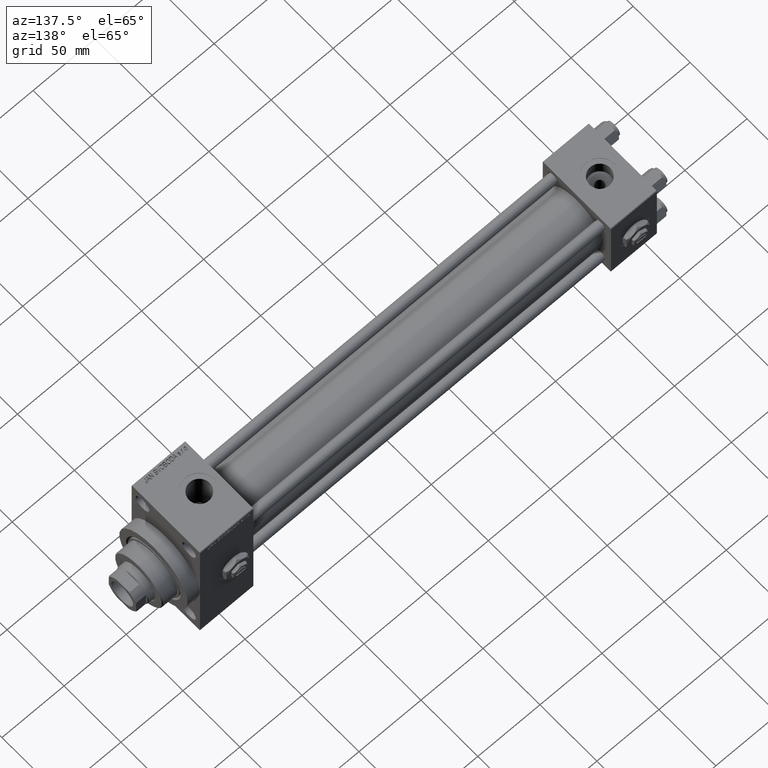
[diagram: clean part render]
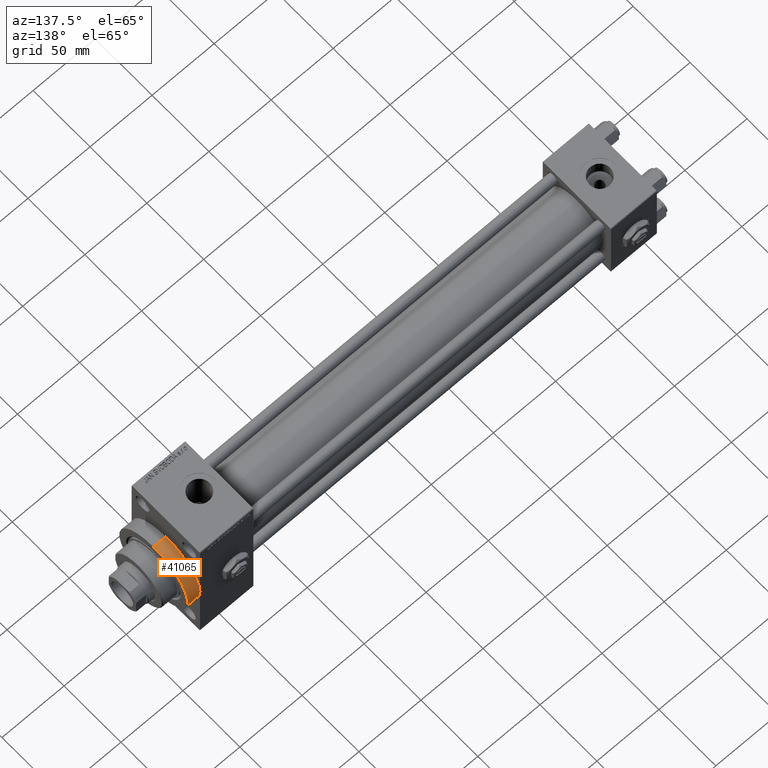
[diagram: same view with one face highlighted and labeled with its STEP entity id]
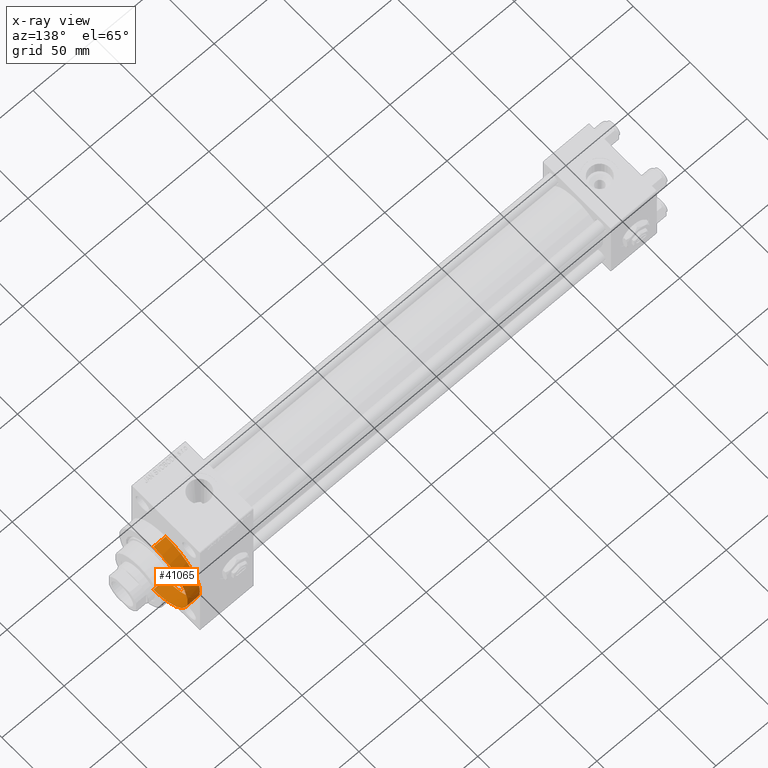
[diagram: x-ray of the same camera — body ghosted, the highlighted face saturated]
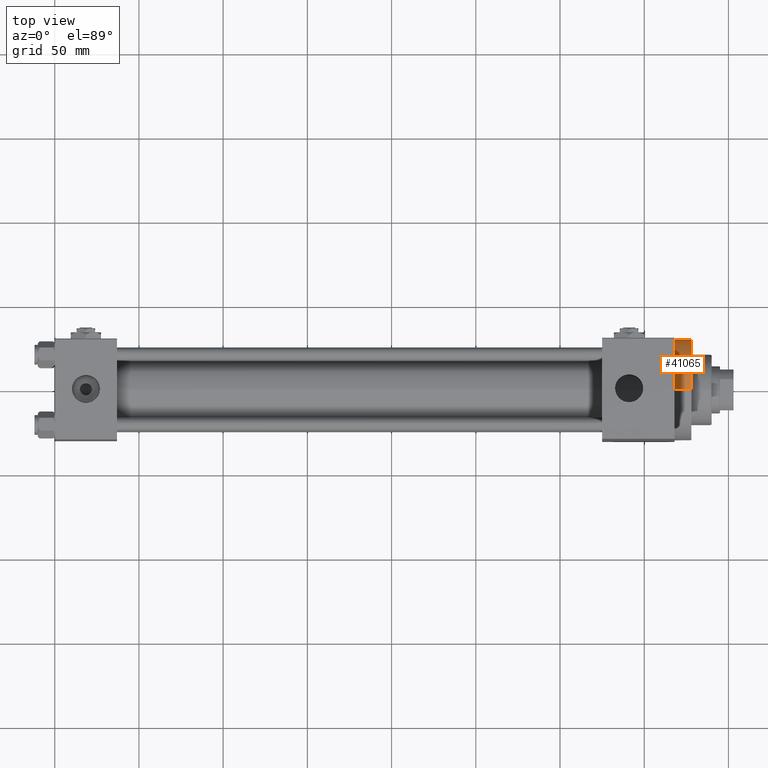
[diagram: same view with one face highlighted and labeled with its STEP entity id]
A machine part, auxiliary view. The second image highlights one B-rep face of the part: STEP entity #41065.
The next image is the same camera in x-ray: the body ghosted, the highlighted face saturated — about 1% of this face is hidden behind the body in this view.
A second angle (top view) of the same face is appended — the face is thin or edge-on in the first view.
In plain terms, the highlighted cylindrical surface (partial cylindrical patch) has radius 30 mm, axis along (-1, -0, -0).
Its self-contained STEP definition (entity closure, byte-faithful):
#526 = VERTEX_POINT ( 'NONE', #47944 ) ;
#1825 = CARTESIAN_POINT ( 'NONE',  ( 367.9999999999999432, 3.673940397442059178E-15, -30.00000000000000000 ) ) ;
#3844 = AXIS2_PLACEMENT_3D ( 'NONE', #5114, #35200, #31431 ) ;
#4143 = VERTEX_POINT ( 'NONE', #35996 ) ;
#4313 = LINE ( 'NONE', #15596, #43975 ) ;
#5114 = CARTESIAN_POINT ( 'NONE',  ( 377.9999999999999432, 0.000000000000000000, 0.000000000000000000 ) ) ;
#9059 = DIRECTION ( 'NONE',  ( 0.000000000000000000, 0.000000000000000000, -1.000000000000000000 ) ) ;
#9345 = LINE ( 'NONE', #21357, #29757 ) ;
#12150 = FACE_OUTER_BOUND ( 'NONE', #15530, .T. ) ;
#12858 = DIRECTION ( 'NONE',  ( -1.000000000000000000, -0.000000000000000000, -0.000000000000000000 ) ) ;
#13903 = EDGE_CURVE ( 'NONE', #43881, #17220, #9345, .T. ) ;
#15056 = EDGE_CURVE ( 'NONE', #17220, #38900, #33809, .T. ) ;
#15530 = EDGE_LOOP ( 'NONE', ( #37306, #17904, #34024, #28763, #27469 ) ) ;
#15596 = CARTESIAN_POINT ( 'NONE',  ( 377.9999999999999432, 0.000000000000000000, 30.00000000000000000 ) ) ;
#16549 = EDGE_CURVE ( 'NONE', #43881, #526, #46724, .T. ) ;
#16699 = DIRECTION ( 'NONE',  ( 1.000000000000000000, 0.000000000000000000, 0.000000000000000000 ) ) ;
#17220 = VERTEX_POINT ( 'NONE', #1825 ) ;
#17877 = AXIS2_PLACEMENT_3D ( 'NONE', #23465, #16699, #28223 ) ;
#17904 = ORIENTED_EDGE ( 'NONE', *, *, #13903, .T. ) ;
#20805 = DIRECTION ( 'NONE',  ( 1.000000000000000000, 0.000000000000000000, 0.000000000000000000 ) ) ;
#21056 = DIRECTION ( 'NONE',  ( 0.000000000000000000, 0.000000000000000000, -1.000000000000000000 ) ) ;
#21357 = CARTESIAN_POINT ( 'NONE',  ( 377.9999999999999432, 3.673940397442059178E-15, -30.00000000000000000 ) ) ;
#22061 = CARTESIAN_POINT ( 'NONE',  ( 367.9999999999999432, 30.00000000000000000, 0.000000000000000000 ) ) ;
#23352 = DIRECTION ( 'NONE',  ( -1.000000000000000000, -0.000000000000000000, -0.000000000000000000 ) ) ;
#23465 = CARTESIAN_POINT ( 'NONE',  ( 377.9999999999999432, 0.000000000000000000, 0.000000000000000000 ) ) ;
#24150 = CYLINDRICAL_SURFACE ( 'NONE', #3844, 30.00000000000000000 ) ;
#27469 = ORIENTED_EDGE ( 'NONE', *, *, #43175, .F. ) ;
#28223 = DIRECTION ( 'NONE',  ( 0.000000000000000000, 0.000000000000000000, -1.000000000000000000 ) ) ;
#28763 = ORIENTED_EDGE ( 'NONE', *, *, #48667, .T. ) ;
#28920 = CARTESIAN_POINT ( 'NONE',  ( 377.9999999999999432, 3.673940397442059178E-15, -30.00000000000000000 ) ) ;
#29757 = VECTOR ( 'NONE', #12858, 1000.000000000000000 ) ;
#31431 = DIRECTION ( 'NONE',  ( 0.000000000000000000, 0.000000000000000000, 1.000000000000000000 ) ) ;
#32107 = DIRECTION ( 'NONE',  ( 1.000000000000000000, 0.000000000000000000, 0.000000000000000000 ) ) ;
#33809 = CIRCLE ( 'NONE', #36214, 30.00000000000000000 ) ;
#34024 = ORIENTED_EDGE ( 'NONE', *, *, #15056, .T. ) ;
#35200 = DIRECTION ( 'NONE',  ( -1.000000000000000000, -0.000000000000000000, -0.000000000000000000 ) ) ;
#35996 = CARTESIAN_POINT ( 'NONE',  ( 367.9999999999999432, 0.000000000000000000, 30.00000000000000000 ) ) ;
#36046 = AXIS2_PLACEMENT_3D ( 'NONE', #43409, #32107, #9059 ) ;
#36214 = AXIS2_PLACEMENT_3D ( 'NONE', #39872, #20805, #21056 ) ;
#37306 = ORIENTED_EDGE ( 'NONE', *, *, #16549, .F. ) ;
#38900 = VERTEX_POINT ( 'NONE', #22061 ) ;
#39872 = CARTESIAN_POINT ( 'NONE',  ( 367.9999999999999432, 0.000000000000000000, 0.000000000000000000 ) ) ;
#40071 = CIRCLE ( 'NONE', #36046, 30.00000000000000000 ) ;
#41065 = ADVANCED_FACE ( 'NONE', ( #12150 ), #24150, .T. ) ;
#43175 = EDGE_CURVE ( 'NONE', #526, #4143, #4313, .T. ) ;
#43409 = CARTESIAN_POINT ( 'NONE',  ( 367.9999999999999432, 0.000000000000000000, 0.000000000000000000 ) ) ;
#43881 = VERTEX_POINT ( 'NONE', #28920 ) ;
#43975 = VECTOR ( 'NONE', #23352, 1000.000000000000000 ) ;
#46724 = CIRCLE ( 'NONE', #17877, 30.00000000000000000 ) ;
#47944 = CARTESIAN_POINT ( 'NONE',  ( 377.9999999999999432, 0.000000000000000000, 30.00000000000000000 ) ) ;
#48667 = EDGE_CURVE ( 'NONE', #38900, #4143, #40071, .T. ) ;